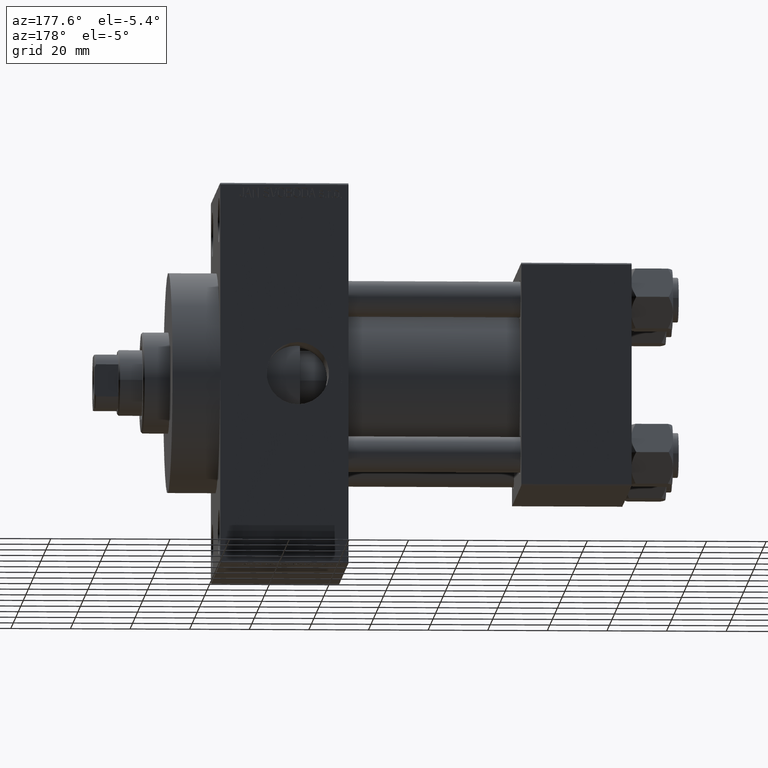
[diagram: clean part render]
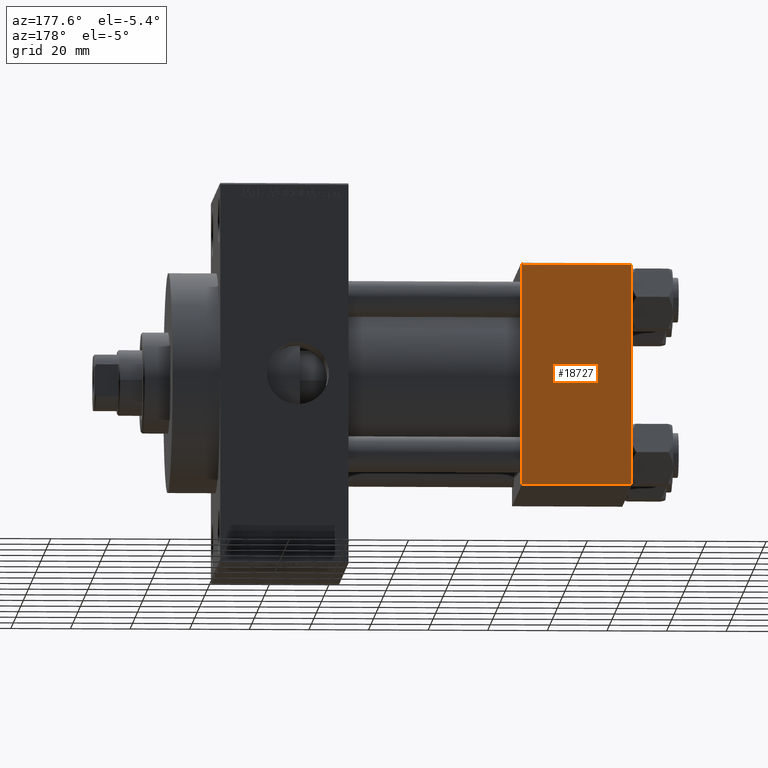
[diagram: same view with one face highlighted and labeled with its STEP entity id]
A machine part, auxiliary view. The second image highlights one B-rep face of the part: STEP entity #18727.
In plain terms, the highlighted planar face has unit normal (0, 1, 0).
Its self-contained STEP definition (entity closure, byte-faithful):
#1044 = VERTEX_POINT ( 'NONE', #42800 ) ;
#1857 = VECTOR ( 'NONE', #32915, 1000.000000000000000 ) ;
#1998 = VERTEX_POINT ( 'NONE', #42818 ) ;
#2185 = DIRECTION ( 'NONE',  ( 0.000000000000000000, -0.000000000000000000, 1.000000000000000000 ) ) ;
#6970 = VECTOR ( 'NONE', #35472, 1000.000000000000000 ) ;
#10702 = VECTOR ( 'NONE', #28982, 1000.000000000000000 ) ;
#11251 = EDGE_CURVE ( 'NONE', #1998, #13834, #41941, .T. ) ;
#13802 = CARTESIAN_POINT ( 'NONE',  ( 0.000000000000000000, 37.49999999999999289, 37.00000000000000000 ) ) ;
#13834 = VERTEX_POINT ( 'NONE', #36823 ) ;
#16039 = CARTESIAN_POINT ( 'NONE',  ( 37.00000000000000000, 37.49999999999999289, 37.50000000000000000 ) ) ;
#16499 = DIRECTION ( 'NONE',  ( -0.000000000000000000, 1.000000000000000000, 0.000000000000000000 ) ) ;
#16752 = EDGE_CURVE ( 'NONE', #13834, #1044, #25971, .T. ) ;
#17890 = EDGE_LOOP ( 'NONE', ( #38087, #31222, #29614, #27226 ) ) ;
#18727 = ADVANCED_FACE ( 'NONE', ( #41344 ), #45174, .T. ) ;
#18879 = CARTESIAN_POINT ( 'NONE',  ( 0.000000000000000000, 37.49999999999999289, 37.50000000000000000 ) ) ;
#21807 = CARTESIAN_POINT ( 'NONE',  ( 37.00000000000000000, 37.49999999999999289, 37.00000000000000000 ) ) ;
#23506 = EDGE_CURVE ( 'NONE', #41909, #1044, #41561, .T. ) ;
#25971 = LINE ( 'NONE', #29101, #1857 ) ;
#27226 = ORIENTED_EDGE ( 'NONE', *, *, #34581, .T. ) ;
#27829 = CARTESIAN_POINT ( 'NONE',  ( 37.00000000000000000, 37.49999999999999289, 37.50000000000000000 ) ) ;
#28982 = DIRECTION ( 'NONE',  ( 1.000000000000000000, 0.000000000000000000, 0.000000000000000000 ) ) ;
#29101 = CARTESIAN_POINT ( 'NONE',  ( 37.00000000000000000, 37.49999999999999289, -36.99999999999998579 ) ) ;
#29614 = ORIENTED_EDGE ( 'NONE', *, *, #23506, .F. ) ;
#31222 = ORIENTED_EDGE ( 'NONE', *, *, #16752, .T. ) ;
#32915 = DIRECTION ( 'NONE',  ( -1.000000000000000000, 0.000000000000000000, 0.000000000000000000 ) ) ;
#33449 = DIRECTION ( 'NONE',  ( 0.000000000000000000, 0.000000000000000000, -1.000000000000000000 ) ) ;
#34581 = EDGE_CURVE ( 'NONE', #41909, #1998, #39492, .T. ) ;
#35472 = DIRECTION ( 'NONE',  ( 0.000000000000000000, 0.000000000000000000, -1.000000000000000000 ) ) ;
#36823 = CARTESIAN_POINT ( 'NONE',  ( 37.00000000000000000, 37.49999999999999289, -36.99999999999998579 ) ) ;
#38087 = ORIENTED_EDGE ( 'NONE', *, *, #11251, .T. ) ;
#39259 = AXIS2_PLACEMENT_3D ( 'NONE', #16039, #16499, #2185 ) ;
#39492 = LINE ( 'NONE', #21807, #10702 ) ;
#41344 = FACE_OUTER_BOUND ( 'NONE', #17890, .T. ) ;
#41561 = LINE ( 'NONE', #18879, #41692 ) ;
#41692 = VECTOR ( 'NONE', #33449, 1000.000000000000000 ) ;
#41909 = VERTEX_POINT ( 'NONE', #13802 ) ;
#41941 = LINE ( 'NONE', #27829, #6970 ) ;
#42800 = CARTESIAN_POINT ( 'NONE',  ( 0.000000000000000000, 37.49999999999999289, -36.99999999999998579 ) ) ;
#42818 = CARTESIAN_POINT ( 'NONE',  ( 37.00000000000000000, 37.49999999999999289, 37.00000000000000000 ) ) ;
#45174 = PLANE ( 'NONE',  #39259 ) ;